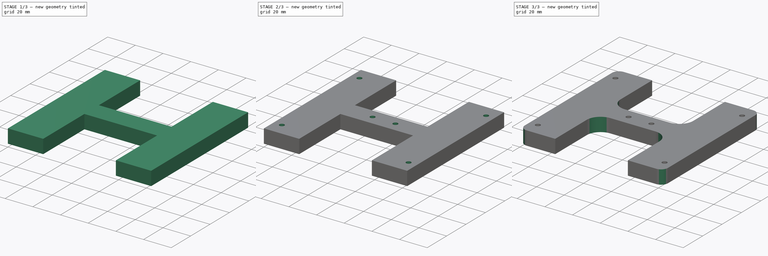
[diagram: build sequence overview — one tinted view per stage of 3, left to right]
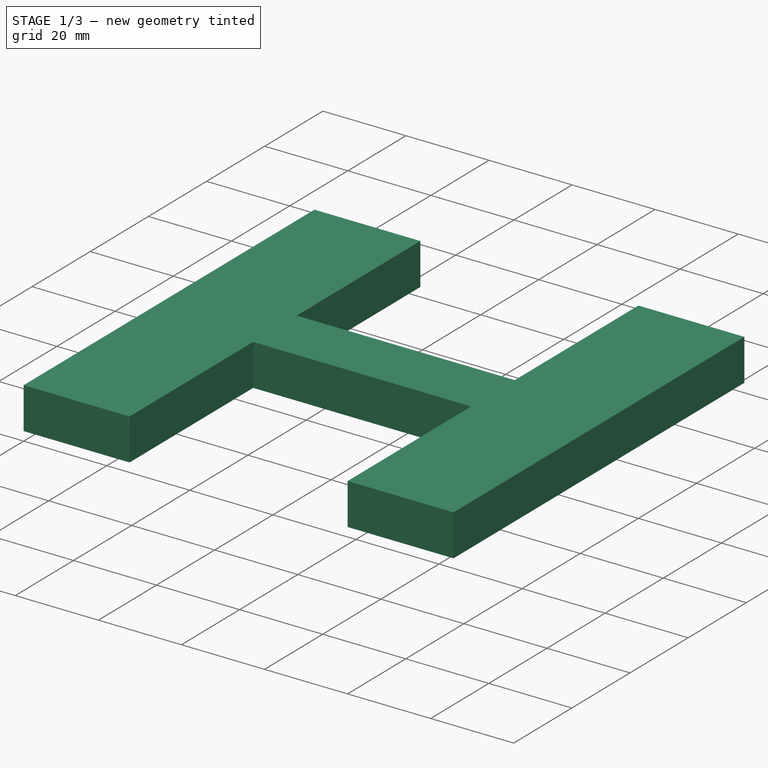
[diagram: stage 1 of 3 — iso view after this stage's code; geometry added in this stage tinted green]
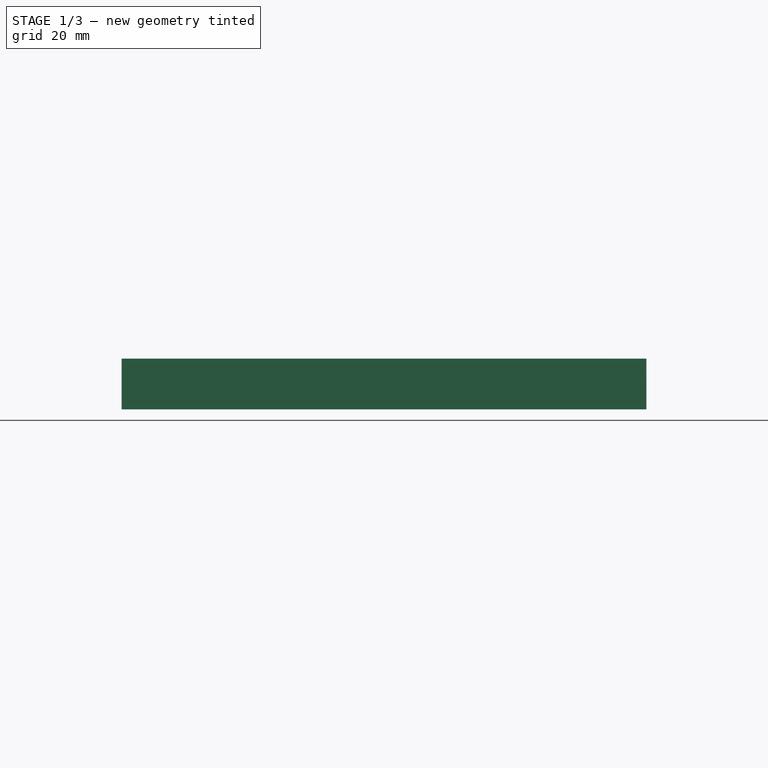
[diagram: stage 1 of 3 — front view after this stage's code; geometry added in this stage tinted green]
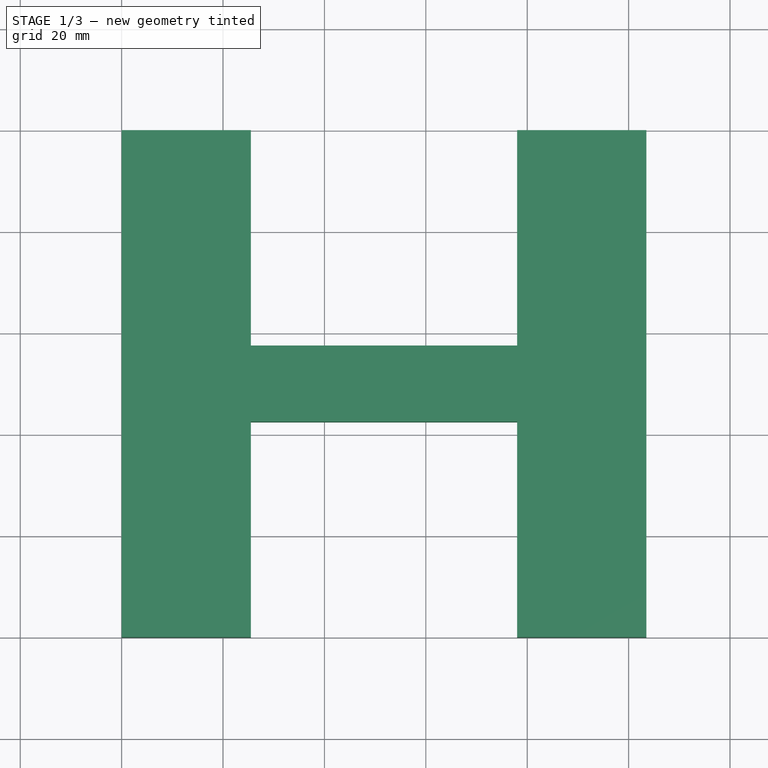
[diagram: stage 1 of 3 — top view after this stage's code; geometry added in this stage tinted green]
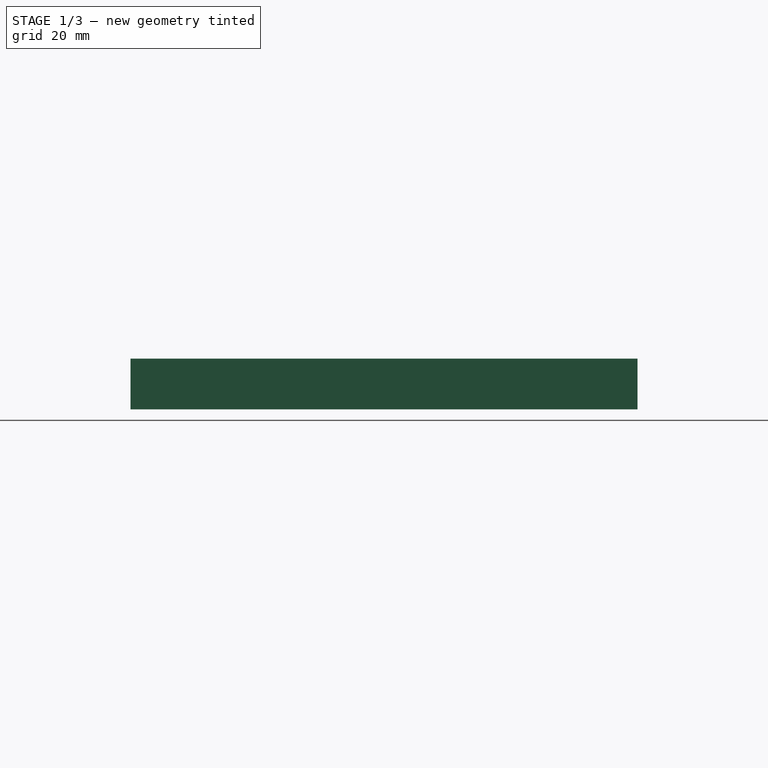
[diagram: stage 1 of 3 — right view after this stage's code; geometry added in this stage tinted green]
FCSTD DOCUMENT  (FreeCAD 0.20R29177 (Git))
Label: base H1
License: All rights reserved
LicenseURL: http://en.wikipedia.org/wiki/All_rights_reserved
objects: Sketcher::SketchObject×3, PartDesign::Pocket×2, PartDesign::Fillet×2, TechDraw::DrawSVGTemplate×1, PartDesign::Pad×1, PartDesign::Body×1, TechDraw::DrawViewPart×1, TechDraw::DrawPage×1
note: 14 computed .brp shape members not serialized (recipe doc carries the construction recipe); baked Part::Feature solids carry a one-line shape summary decoded from their .brp

FEATURE [TechDraw::DrawSVGTemplate] Template
  EditableTexts = Designed_by_Name=Designed by Name; Drawing_number=Drawing number; FC-Date=Date; FC-SC=Scale; FC-SH=Sheet; FC-Title=Title; Subtitle=Subtitle; Weight=Weight
  Height = 210
  Orientation = 1
  Width = 297
FEATURE [Sketcher::SketchObject] Sketch
  FullyConstrained = true
  MapMode = 5
  Support = -> [XY_Plane]
  sketch-geometry (4):
    g0: LineSegment StartX=0 StartY=100 StartZ=0 EndX=103.5 EndY=100 EndZ=0
    g1: LineSegment StartX=103.5 StartY=100 StartZ=0 EndX=103.5 EndY=0 EndZ=0
    g2: LineSegment StartX=103.5 StartY=0 StartZ=0 EndX=0 EndY=0 EndZ=0
    g3: LineSegment StartX=0 StartY=0 StartZ=0 EndX=0 EndY=100 EndZ=0
  constraints (11):
    c: Coincident(g0,g1)
    c: Coincident(g1,g2)
    c: Coincident(g2,g3)
    c: Coincident(g3,g0)
    c: Horizontal(g0)
    c: Horizontal(g2)
    c: Vertical(g1)
    c: Vertical(g3)
    c: DistanceX(g2,g1) = 103.5
    c: DistanceY(g2,g0) = 100
    c: Coincident(g2,g-1)
FEATURE [PartDesign::Pad] Pad
  Direction = (0,0,1)
  Length = 10
  Length2 = 100
  Profile = -> Sketch
  ReferenceAxis = -> Sketch [N_Axis]
  Type = 0
FEATURE [Sketcher::SketchObject] Sketch001
  ExternalGeometry = -> [Pad]
  FullyConstrained = true
  MapMode = 5
  Placement = pos=(0,0,10) rot=(0,0,1;0rad)
  Support = -> [Pad]
  sketch-geometry (10):
    g0: LineSegment StartX=25.5 StartY=100 StartZ=0 EndX=78 EndY=100 EndZ=0
    g1: LineSegment StartX=78 StartY=100 StartZ=0 EndX=78 EndY=57.5 EndZ=0
    g2: LineSegment StartX=78 StartY=57.5 StartZ=0 EndX=25.5 EndY=57.5 EndZ=0
    g3: LineSegment StartX=25.5 StartY=57.5 StartZ=0 EndX=25.5 EndY=100 EndZ=0
    g4: LineSegment StartX=25.5 StartY=0 StartZ=0 EndX=78 EndY=0 EndZ=0
    g5: LineSegment StartX=78 StartY=0 StartZ=0 EndX=78 EndY=42.5 EndZ=0
    g6: LineSegment StartX=78 StartY=42.5 StartZ=0 EndX=25.5 EndY=42.5 EndZ=0
    g7: LineSegment StartX=25.5 StartY=42.5 StartZ=0 EndX=25.5 EndY=0 EndZ=0
    g8: GeomPoint X=51.75 Y=0 Z=0
    g9: GeomPoint X=51.75 Y=0 Z=0
  constraints (26):
    c: Coincident(g0,g1)
    c: Coincident(g1,g2)
    c: Coincident(g2,g3)
    c: Coincident(g3,g0)
    c: Horizontal(g0)
    c: Horizontal(g2)
    c: Vertical(g1)
    c: Vertical(g3)
    c: PointOnObject(g0,g-4)
    c: Coincident(g4,g5)
    c: Coincident(g5,g6)
    c: Coincident(g6,g7)
    c: Coincident(g7,g4)
    c: Horizontal(g4)
    c: Horizontal(g6)
    c: Vertical(g5)
    c: Vertical(g7)
    c: DistanceX(g4,g4) = 52.5
    c: DistanceX(g-3,g-3) = 103.5
    c: Symmetric(g-1,g-3,g8)
    c: Symmetric(g4,g4,g9)
    c: Coincident(g9,g8)
    c: Vertical(g2,g6)
    c: DistanceY(g6,g2) = 15
    c: Equal(g3,g7)
    c: Vertical(g1,g5)
FEATURE [PartDesign::Pocket] Pocket
  BaseFeature = -> Pad
  Direction = (0,0,-1)
  Length = 5
  Length2 = 100
  Profile = -> Sketch001
  ReferenceAxis = -> Sketch001 [N_Axis]
  Type = 1
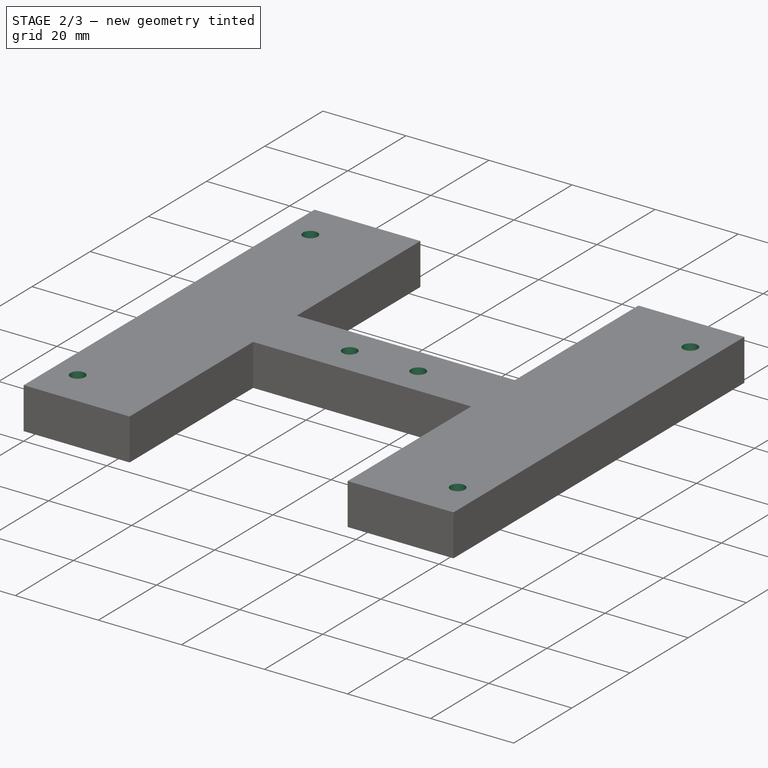
[diagram: stage 2 of 3 — iso view after this stage's code; geometry added in this stage tinted green]
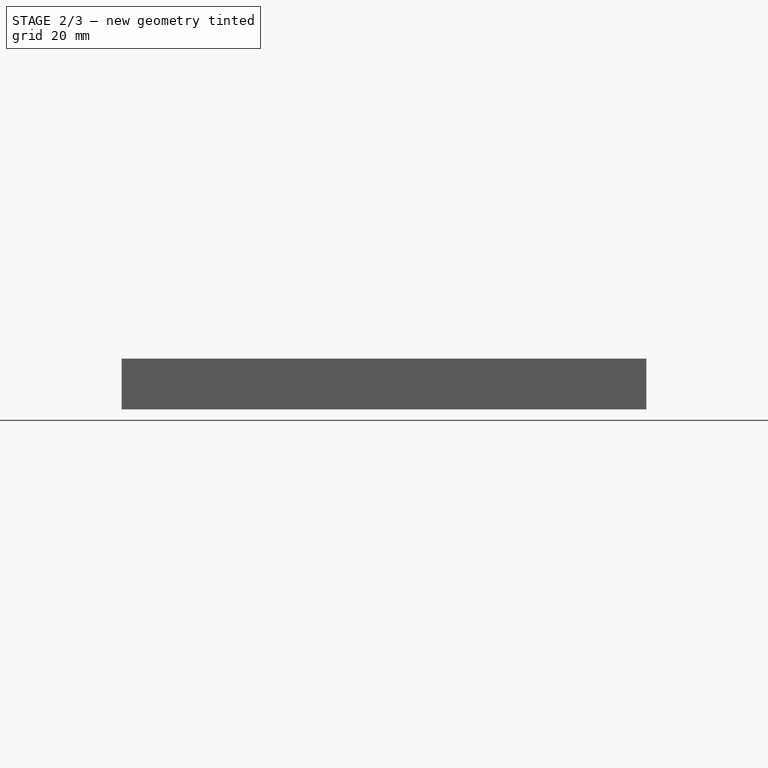
[diagram: stage 2 of 3 — front view after this stage's code; geometry added in this stage tinted green]
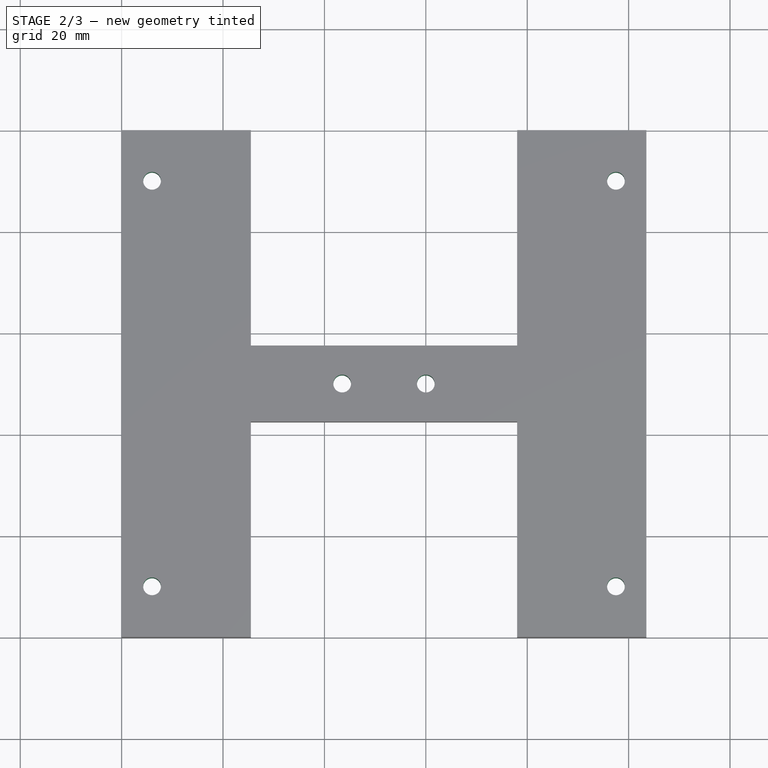
[diagram: stage 2 of 3 — top view after this stage's code; geometry added in this stage tinted green]
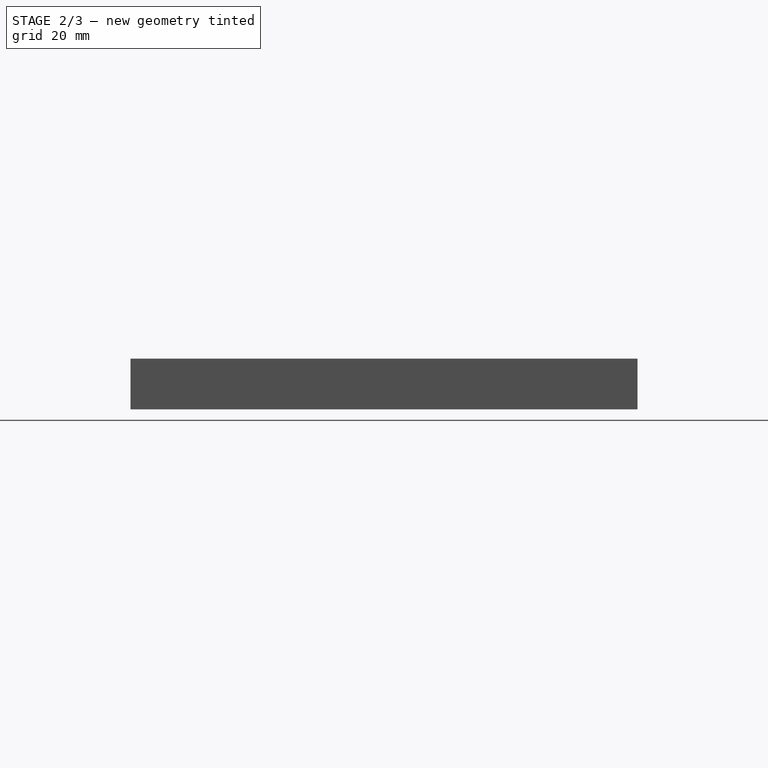
[diagram: stage 2 of 3 — right view after this stage's code; geometry added in this stage tinted green]
FEATURE [Sketcher::SketchObject] Sketch002
  ExternalGeometry = -> [Pocket]
  FullyConstrained = true
  MapMode = 5
  Placement = pos=(0,0,10) rot=(0,0,1;0rad)
  Support = -> [Pocket]
  sketch-geometry (12):
    g0: Circle CenterX=6 CenterY=90 CenterZ=0 NormalX=0 NormalY=0 NormalZ=1 AngleXU=0 Radius=1.75
    g1: Circle CenterX=6 CenterY=10 CenterZ=0 NormalX=0 NormalY=0 NormalZ=1 AngleXU=0 Radius=1.75
    g2: Circle CenterX=43.5 CenterY=50 CenterZ=0 NormalX=0 NormalY=0 NormalZ=1 AngleXU=0 Radius=1.75
    g3: Circle CenterX=97.5 CenterY=90 CenterZ=0 NormalX=0 NormalY=0 NormalZ=1 AngleXU=0 Radius=1.75
    g4: Circle CenterX=97.5 CenterY=10 CenterZ=0 NormalX=0 NormalY=0 NormalZ=1 AngleXU=0 Radius=1.75
    g5: Circle CenterX=60 CenterY=50 CenterZ=0 NormalX=0 NormalY=0 NormalZ=1 AngleXU=0 Radius=1.75
    g6: GeomPoint X=43.5 Y=42.5 Z=0
    g7: GeomPoint X=43.5 Y=57.5 Z=0
    g8: GeomPoint X=43.5 Y=50 Z=0
    g9: GeomPoint X=60 Y=50 Z=0
    g10: GeomPoint X=60 Y=42.5 Z=0
    g11: GeomPoint X=60 Y=57.5 Z=0
  constraints (26):
    c: Equal(g0,g1)
    c: DistanceX(g-7,g0) = 6
    c: DistanceY(g0,g-7) = 10
    c: Vertical(g0,g1)
    c: DistanceY(g-7,g1) = 10
    c: Horizontal(g1,g4)
    c: Horizontal(g0,g3)
    c: DistanceX(g4,g-8) = 6
    c: Vertical(g4,g3)
    c: Diameter(g5) = 3.5
    c: PointOnObject(g6,g-11)
    c: PointOnObject(g7,g-12)
    c: DistanceX(g-11,g6) = 18
    c: DistanceX(g-12,g7) = 18
    c: Coincident(g8,g2)
    c: Symmetric(g7,g6,g2)
    c: Coincident(g9,g5)
    c: PointOnObject(g10,g-11)
    c: DistanceX(g11,g-12) = 18
    c: DistanceX(g10,g-11) = 18
    c: Symmetric(g11,g10,g5)
    c: PointOnObject(g11,g-12)
    c: Equal(g5,g2)
    c: Equal(g2,g0)
    c: Equal(g1,g3)
    c: Equal(g3,g4)
FEATURE [PartDesign::Pocket] Pocket001
  BaseFeature = -> Pocket
  Direction = (0,0,-1)
  Length = 5
  Length2 = 5
  Profile = -> Sketch002
  ReferenceAxis = -> Sketch002 [N_Axis]
  Type = 1
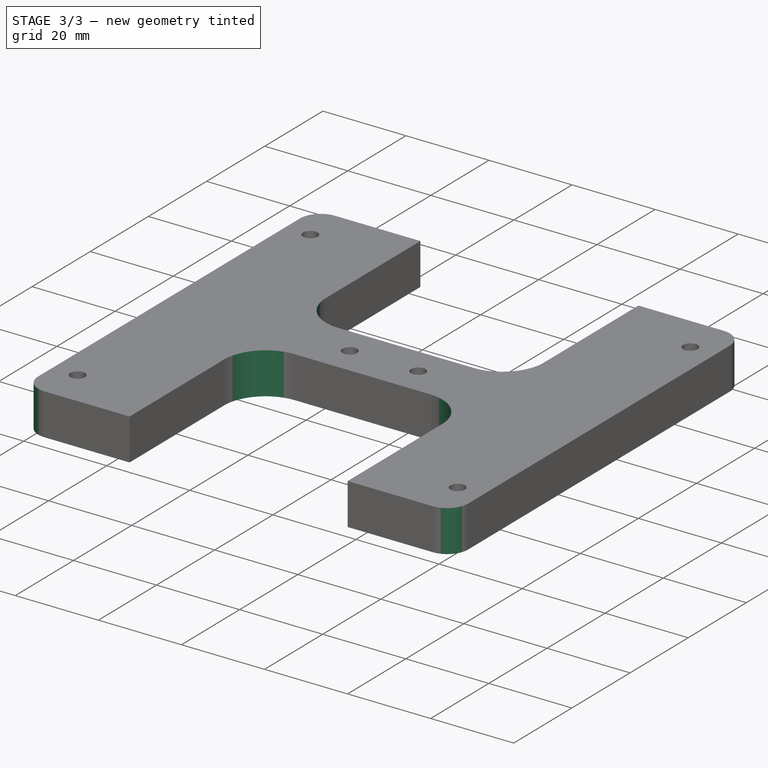
[diagram: stage 3 of 3 — iso view after this stage's code; geometry added in this stage tinted green]
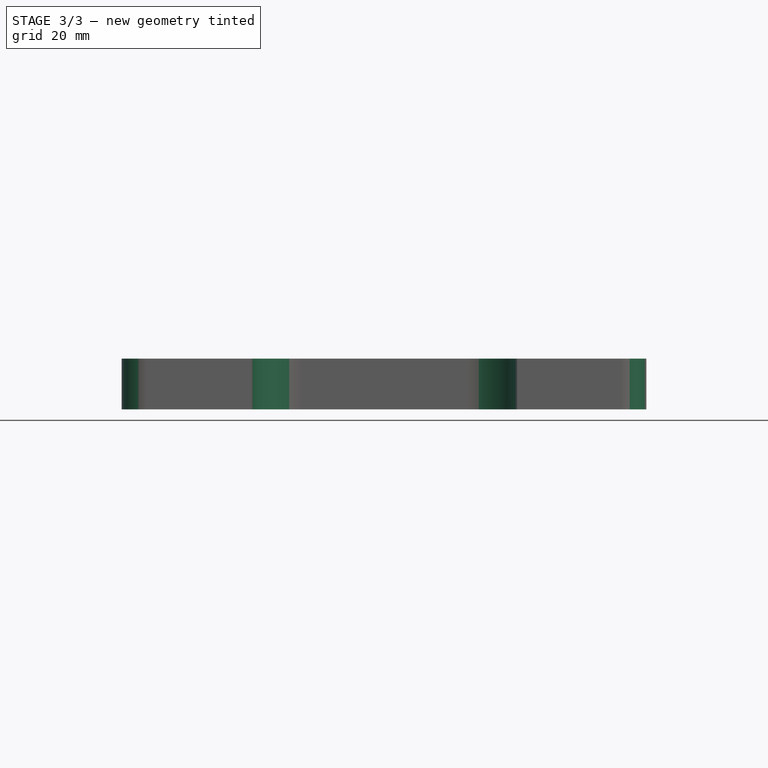
[diagram: stage 3 of 3 — front view after this stage's code; geometry added in this stage tinted green]
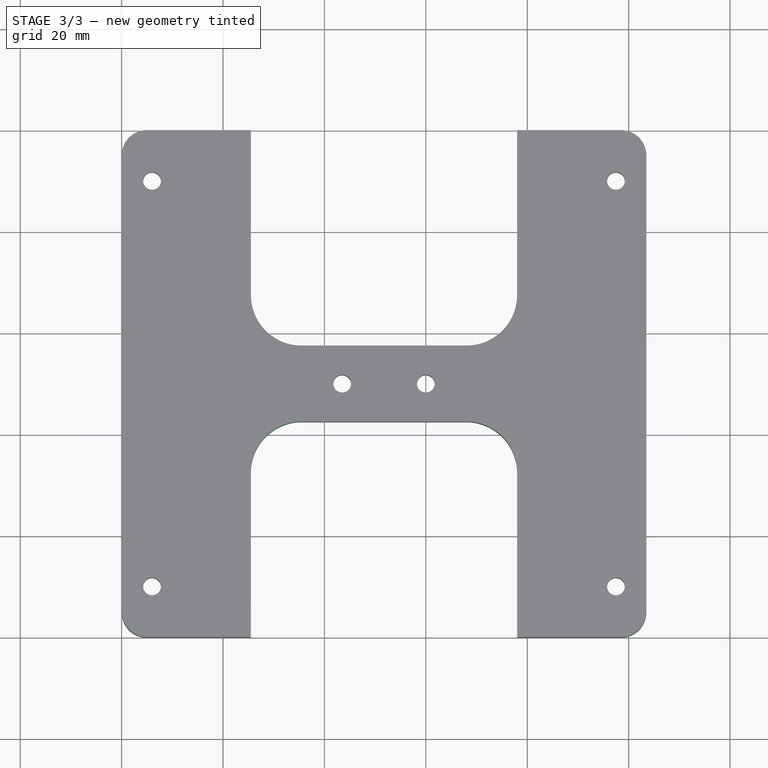
[diagram: stage 3 of 3 — top view after this stage's code; geometry added in this stage tinted green]
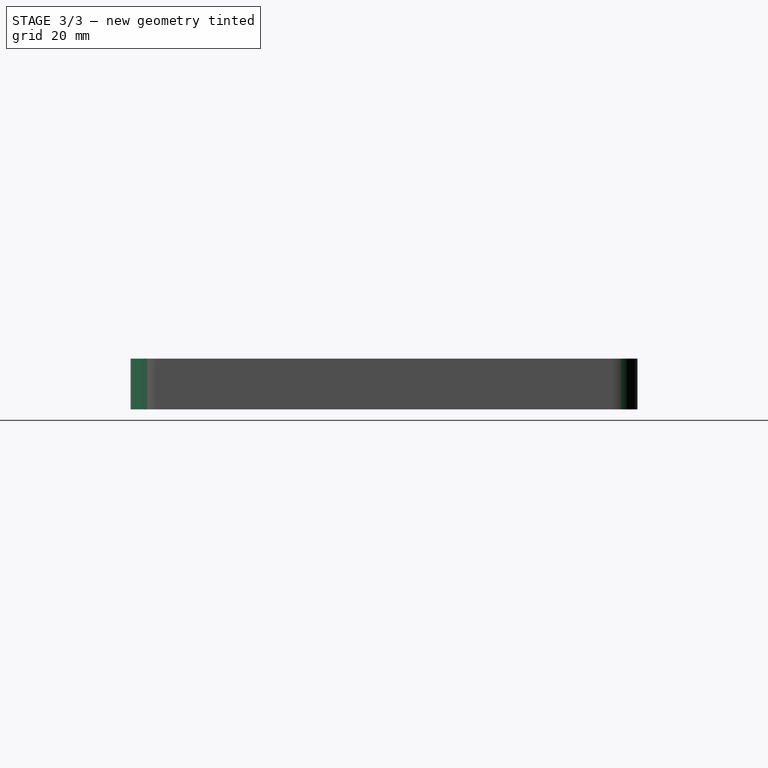
[diagram: stage 3 of 3 — right view after this stage's code; geometry added in this stage tinted green]
FEATURE [PartDesign::Fillet] Fillet
  Base = -> Pocket001 [Edge4,Edge40,Edge48,Edge46]
  BaseFeature = -> Pocket001
  Radius = 5
  SupportTransform = false
  UseAllEdges = false
FEATURE [PartDesign::Fillet] Fillet001
  Base = -> Fillet [Edge50,Edge55,Edge29,Edge57]
  BaseFeature = -> Fillet
  Radius = 10
  SupportTransform = false
  UseAllEdges = false
FEATURE [PartDesign::Body] Body
  Group = -> [Sketch,Pad,Sketch001,Pocket,Sketch002,Pocket001,Fillet,Fillet001]
  Origin = -> Origin
  Tip = -> Fillet001
FEATURE [TechDraw::DrawViewPart] View
  CoarseView = false
  Direction = (0,0,1)
  Focus = 100
  HardHidden = false
  IsoCount = 0
  IsoHidden = false
  IsoVisible = false
  LockPosition = false
  Perspective = false
  Rotation = 0
  ScaleType = 0
  SeamHidden = false
  SeamVisible = true
  SmoothHidden = false
  SmoothVisible = true
  Source = -> [Body]
  X = 99.0088
  XDirection = (1,0,0)
  Y = 126.794
FEATURE [TechDraw::DrawPage] Page
  KeepUpdated = true
  NextBalloonIndex = 1
  ProjectionType = 0
  Template = -> Template
  Views = -> [View]
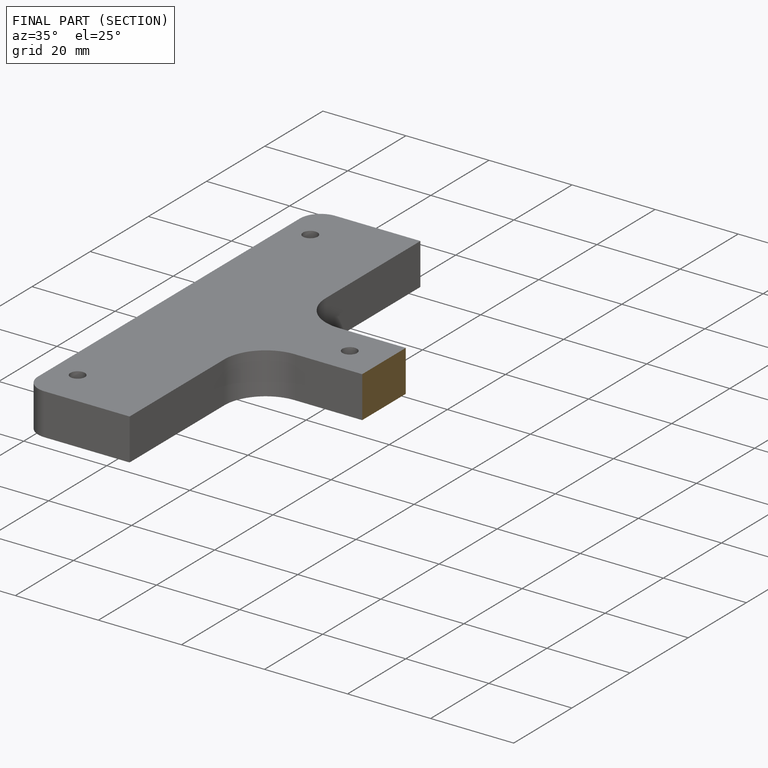
[diagram: finished part — half-section view (interior)]
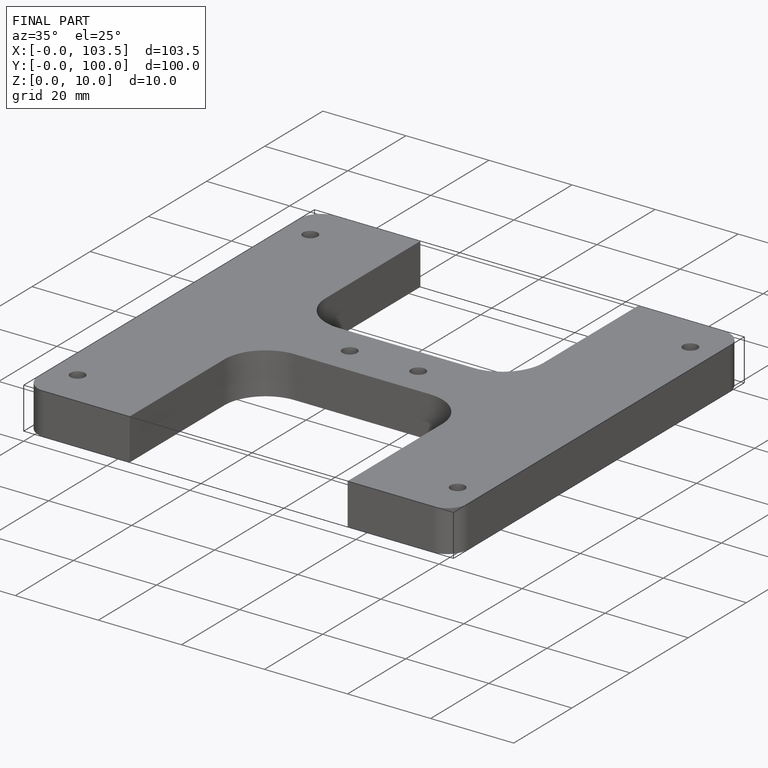
[diagram: finished part — iso view with bounding-box wireframe]
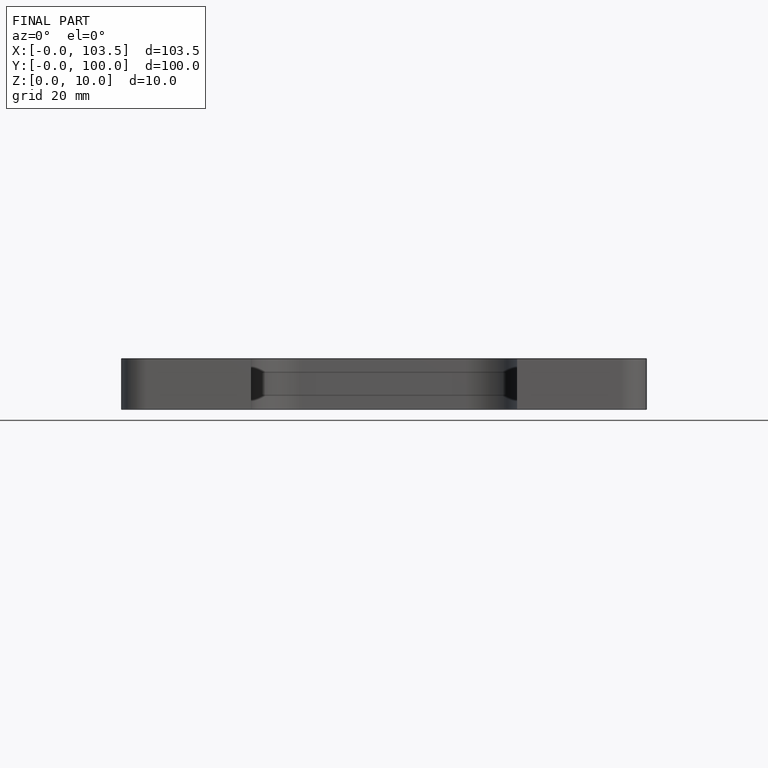
[diagram: finished part — front view with bounding-box wireframe]
